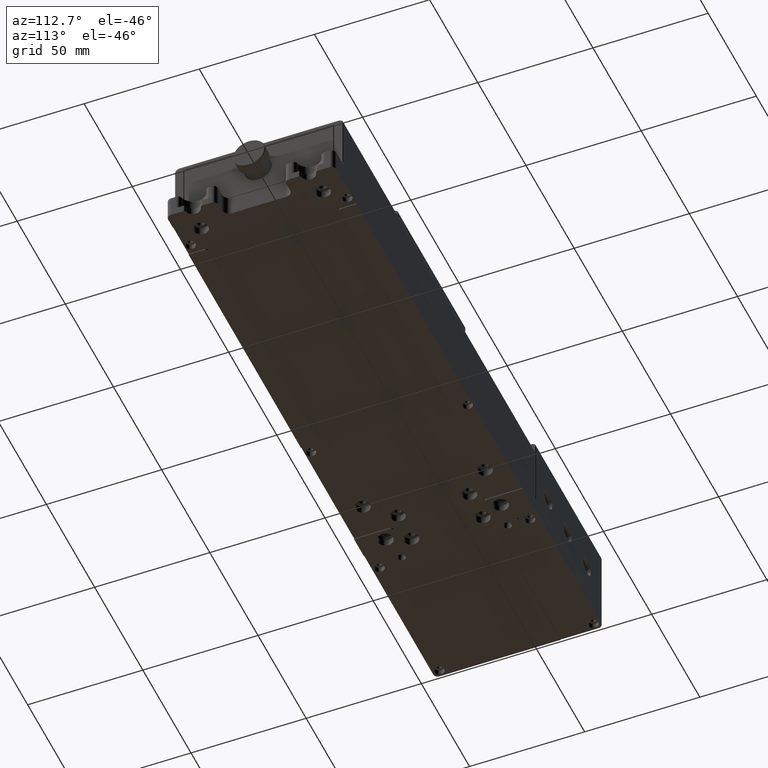
[diagram: clean part render]
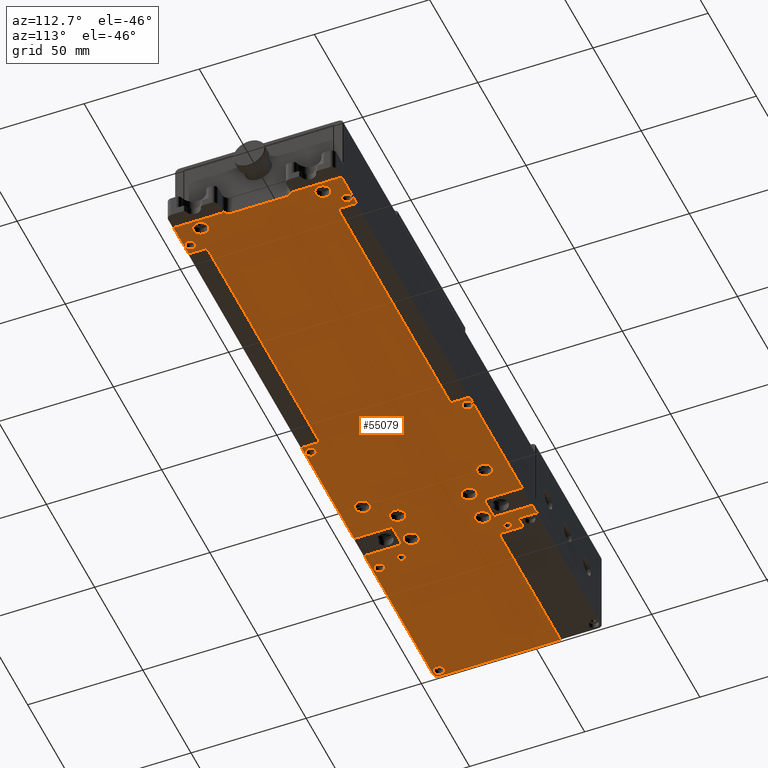
[diagram: same view with one face highlighted and labeled with its STEP entity id]
A machine part, auxiliary view. The second image highlights one B-rep face of the part: STEP entity #55079.
In plain terms, the highlighted planar face has unit normal (0, 0, 1).
Its self-contained STEP definition (entity closure, byte-faithful):
#265 = EDGE_CURVE ( 'NONE', #46659, #51256, #54814, .T. ) ;
#369 = CARTESIAN_POINT ( 'NONE',  ( -151.4252599814024904, -43.46919745025279980, -5.000000000000000000 ) ) ;
#404 = VECTOR ( 'NONE', #51918, 1000.000000000000000 ) ;
#406 = CARTESIAN_POINT ( 'NONE',  ( 118.5747400185975948, -45.46919745025279980, -5.000000000000000000 ) ) ;
#676 = LINE ( 'NONE', #38564, #8265 ) ;
#875 = VERTEX_POINT ( 'NONE', #19033 ) ;
#1094 = EDGE_CURVE ( 'NONE', #60678, #15822, #66562, .T. ) ;
#1246 = DIRECTION ( 'NONE',  ( 0.000000000000000000, 0.000000000000000000, 1.000000000000000000 ) ) ;
#1281 = VECTOR ( 'NONE', #44479, 1000.000000000000000 ) ;
#1370 = EDGE_CURVE ( 'NONE', #35589, #38850, #6203, .T. ) ;
#1426 = DIRECTION ( 'NONE',  ( 1.000000000000000000, 0.000000000000000000, 0.000000000000000000 ) ) ;
#1540 = CARTESIAN_POINT ( 'NONE',  ( -69.42525998140229149, -28.96919745025279980, -5.000000000000000000 ) ) ;
#1763 = EDGE_CURVE ( 'NONE', #53222, #7089, #70087, .T. ) ;
#1798 = CARTESIAN_POINT ( 'NONE',  ( -90.42525998140230570, 9.030802549747210861, -5.000000000000000000 ) ) ;
#1817 = FACE_BOUND ( 'NONE', #28750, .T. ) ;
#1885 = CARTESIAN_POINT ( 'NONE',  ( 116.5747400185975948, 2.830802549747215124, -5.000000000000000000 ) ) ;
#2162 = DIRECTION ( 'NONE',  ( 0.000000000000000000, 0.000000000000000000, -1.000000000000000000 ) ) ;
#2172 = FACE_BOUND ( 'NONE', #13451, .T. ) ;
#2182 = EDGE_CURVE ( 'NONE', #38414, #45064, #4470, .T. ) ;
#2195 = CIRCLE ( 'NONE', #12517, 2.200000000000000622 ) ;
#2448 = ORIENTED_EDGE ( 'NONE', *, *, #1763, .F. ) ;
#2540 = VERTEX_POINT ( 'NONE', #4159 ) ;
#2541 = FACE_OUTER_BOUND ( 'NONE', #5210, .T. ) ;
#2812 = EDGE_LOOP ( 'NONE', ( #29342, #53688 ) ) ;
#2811 = AXIS2_PLACEMENT_3D ( 'NONE', #8332, #36475, #9409 ) ;
#2889 = FACE_BOUND ( 'NONE', #61455, .T. ) ;
#2954 = LINE ( 'NONE', #20631, #60108 ) ;
#3000 = VERTEX_POINT ( 'NONE', #36544 ) ;
#3017 = VERTEX_POINT ( 'NONE', #37607 ) ;
#3294 = AXIS2_PLACEMENT_3D ( 'NONE', #45688, #25123, #47118 ) ;
#3362 = CARTESIAN_POINT ( 'NONE',  ( -14.22525998140227976, -45.46919745025279980, -5.000000000000000000 ) ) ;
#3712 = ORIENTED_EDGE ( 'NONE', *, *, #65206, .F. ) ;
#3775 = DIRECTION ( 'NONE',  ( 0.000000000000000000, 1.000000000000000000, 0.000000000000000000 ) ) ;
#4011 = CARTESIAN_POINT ( 'NONE',  ( -75.17525998140230570, 6.530802549747209973, -5.000000000000000000 ) ) ;
#4017 = DIRECTION ( 'NONE',  ( -1.000000000000000000, 0.000000000000000000, 0.000000000000000000 ) ) ;
#4153 = VECTOR ( 'NONE', #34633, 1000.000000000000000 ) ;
#4159 = CARTESIAN_POINT ( 'NONE',  ( -61.17525998140230570, 6.530802549747209973, -5.000000000000000000 ) ) ;
#4378 = AXIS2_PLACEMENT_3D ( 'NONE', #16966, #44755, #66743 ) ;
#4384 = AXIS2_PLACEMENT_3D ( 'NONE', #37220, #37574, #59581 ) ;
#4400 = CARTESIAN_POINT ( 'NONE',  ( 119.5747400185975948, 5.830802549747209795, -5.000000000000000000 ) ) ;
#4470 = CIRCLE ( 'NONE', #58645, 0.5000000000000004441 ) ;
#4725 = DIRECTION ( 'NONE',  ( 0.000000000000000000, 0.000000000000000000, -1.000000000000000000 ) ) ;
#4737 = DIRECTION ( 'NONE',  ( 0.000000000000000000, 0.000000000000000000, -1.000000000000000000 ) ) ;
#4833 = EDGE_CURVE ( 'NONE', #56523, #8655, #18565, .T. ) ;
#4898 = DIRECTION ( 'NONE',  ( 0.000000000000000000, -1.000000000000000000, 0.000000000000000000 ) ) ;
#4923 = EDGE_CURVE ( 'NONE', #50322, #24203, #51027, .T. ) ;
#4986 = AXIS2_PLACEMENT_3D ( 'NONE', #19072, #37712, #57297 ) ;
#5042 = CARTESIAN_POINT ( 'NONE',  ( -69.42525998140229149, 11.03080254974720020, -5.000000000000000000 ) ) ;
#5086 = CIRCLE ( 'NONE', #55753, 3.250000000000002665 ) ;
#5210 = EDGE_LOOP ( 'NONE', ( #67128, #11081, #40764, #49699, #3712, #32152, #63566, #20474, #15715, #7862, #45558, #47642, #59715, #10521, #57978, #13874, #47479, #71411, #26129, #50723, #62698, #10255, #59147, #55247, #32424, #35215, #36886, #66115, #60237, #63333, #52415, #36128, #55121, #27510, #39876, #63202, #64593, #45324, #51045, #26983, #21327 ) ) ;
#5366 = EDGE_CURVE ( 'NONE', #30670, #8548, #2954, .T. ) ;
#5480 = EDGE_CURVE ( 'NONE', #62137, #26628, #41651, .T. ) ;
#5673 = VERTEX_POINT ( 'NONE', #57331 ) ;
#6111 = EDGE_CURVE ( 'NONE', #44254, #65023, #11716, .T. ) ;
#6131 = CARTESIAN_POINT ( 'NONE',  ( -89.42525998140230570, 9.030802549747210861, -5.000000000000000000 ) ) ;
#6203 = CIRCLE ( 'NONE', #23480, 2.199999999999993516 ) ;
#6243 = VERTEX_POINT ( 'NONE', #41741 ) ;
#6265 = VERTEX_POINT ( 'NONE', #36682 ) ;
#6361 = ORIENTED_EDGE ( 'NONE', *, *, #5480, .F. ) ;
#6499 = DIRECTION ( 'NONE',  ( -1.000000000000000000, 0.000000000000000000, 0.000000000000000000 ) ) ;
#6583 = CARTESIAN_POINT ( 'NONE',  ( 118.5747400185975948, 5.830802549747209795, -5.000000000000000000 ) ) ;
#6599 = EDGE_CURVE ( 'NONE', #6243, #3017, #23909, .T. ) ;
#6677 = CIRCLE ( 'NONE', #4384, 3.250000000000002665 ) ;
#6831 = LINE ( 'NONE', #50856, #26770 ) ;
#6854 = CARTESIAN_POINT ( 'NONE',  ( -64.42525998140230570, -24.46919745025279980, -5.000000000000000000 ) ) ;
#6875 = VERTEX_POINT ( 'NONE', #406 ) ;
#6995 = CARTESIAN_POINT ( 'NONE',  ( -64.42525998140230570, -24.46919745025279980, -5.000000000000000000 ) ) ;
#7044 = DIRECTION ( 'NONE',  ( 0.000000000000000000, -1.000000000000000000, 0.000000000000000000 ) ) ;
#7089 = VERTEX_POINT ( 'NONE', #31728 ) ;
#7172 = AXIS2_PLACEMENT_3D ( 'NONE', #38411, #10982, #66177 ) ;
#7405 = LINE ( 'NONE', #56837, #47475 ) ;
#7590 = DIRECTION ( 'NONE',  ( -1.000000000000000000, 0.000000000000000000, 0.000000000000000000 ) ) ;
#7743 = AXIS2_PLACEMENT_3D ( 'NONE', #12072, #23988, #67978 ) ;
#7762 = DIRECTION ( 'NONE',  ( -1.000000000000000000, 0.000000000000000000, 0.000000000000000000 ) ) ;
#7862 = ORIENTED_EDGE ( 'NONE', *, *, #15532, .T. ) ;
#7935 = CARTESIAN_POINT ( 'NONE',  ( -13.22525998140227799, -37.46919745025279980, -5.000000000000000000 ) ) ;
#8265 = VECTOR ( 'NONE', #43999, 1000.000000000000000 ) ;
#8332 = CARTESIAN_POINT ( 'NONE',  ( 113.5747400185975948, -35.46919745025279980, -5.000000000000000000 ) ) ;
#8347 = LINE ( 'NONE', #52354, #60051 ) ;
#8429 = EDGE_CURVE ( 'NONE', #6875, #32770, #20738, .T. ) ;
#8548 = VERTEX_POINT ( 'NONE', #6583 ) ;
#8573 = VERTEX_POINT ( 'NONE', #56369 ) ;
#8655 = VERTEX_POINT ( 'NONE', #61775 ) ;
#8659 = CIRCLE ( 'NONE', #26000, 1.000000000000000888 ) ;
#8744 = AXIS2_PLACEMENT_3D ( 'NONE', #67653, #29783, #13514 ) ;
#8753 = ORIENTED_EDGE ( 'NONE', *, *, #38376, .F. ) ;
#8845 = VECTOR ( 'NONE', #37164, 1000.000000000000000 ) ;
#8928 = VERTEX_POINT ( 'NONE', #21010 ) ;
#8932 = ORIENTED_EDGE ( 'NONE', *, *, #38775, .T. ) ;
#9368 = EDGE_CURVE ( 'NONE', #8573, #31066, #676, .T. ) ;
#9379 = LINE ( 'NONE', #25996, #8845 ) ;
#9384 = EDGE_CURVE ( 'NONE', #60069, #66681, #33174, .T. ) ;
#9409 = DIRECTION ( 'NONE',  ( -1.000000000000000000, 0.000000000000000000, 0.000000000000000000 ) ) ;
#9426 = CARTESIAN_POINT ( 'NONE',  ( -150.4252599814024904, -42.46919745025279980, -5.000000000000000000 ) ) ;
#9651 = DIRECTION ( 'NONE',  ( -1.000000000000000000, 0.000000000000000000, 0.000000000000000000 ) ) ;
#9724 = CARTESIAN_POINT ( 'NONE',  ( -79.42525998140230570, -45.46919745025279980, -5.000000000000000000 ) ) ;
#9837 = VERTEX_POINT ( 'NONE', #16471 ) ;
#9852 = EDGE_CURVE ( 'NONE', #22302, #9837, #17321, .T. ) ;
#9924 = EDGE_CURVE ( 'NONE', #24908, #19865, #51053, .T. ) ;
#9951 = CIRCLE ( 'NONE', #8744, 3.250000000000002665 ) ;
#10039 = DIRECTION ( 'NONE',  ( 0.000000000000000000, 1.000000000000000000, 0.000000000000000000 ) ) ;
#10132 = DIRECTION ( 'NONE',  ( -1.000000000000000000, -7.438779914137249619E-18, 0.000000000000000000 ) ) ;
#10220 = CARTESIAN_POINT ( 'NONE',  ( -16.22525998140229930, 25.03080254974720020, -5.000000000000000000 ) ) ;
#10255 = ORIENTED_EDGE ( 'NONE', *, *, #9368, .F. ) ;
#10301 = DIRECTION ( 'NONE',  ( 0.000000000000000000, 0.000000000000000000, -1.000000000000000000 ) ) ;
#10371 = DIRECTION ( 'NONE',  ( 0.000000000000000000, 0.000000000000000000, 1.000000000000000000 ) ) ;
#10429 = VECTOR ( 'NONE', #7044, 1000.000000000000000 ) ;
#10485 = VECTOR ( 'NONE', #23555, 1000.000000000000000 ) ;
#10503 = CARTESIAN_POINT ( 'NONE',  ( 102.3747400185976062, 19.53080254974720020, -5.000000000000000000 ) ) ;
#10521 = ORIENTED_EDGE ( 'NONE', *, *, #4833, .F. ) ;
#10685 = VERTEX_POINT ( 'NONE', #12543 ) ;
#10842 = CARTESIAN_POINT ( 'NONE',  ( -78.42525998140230570, -24.46919745025279980, -5.000000000000000000 ) ) ;
#10885 = VECTOR ( 'NONE', #66805, 1000.000000000000000 ) ;
#10982 = DIRECTION ( 'NONE',  ( 0.000000000000000000, 0.000000000000000000, 1.000000000000000000 ) ) ;
#11081 = ORIENTED_EDGE ( 'NONE', *, *, #63167, .T. ) ;
#11160 = EDGE_CURVE ( 'NONE', #31066, #45603, #7405, .T. ) ;
#11205 = DIRECTION ( 'NONE',  ( -1.000000000000000000, 0.000000000000000000, 0.000000000000000000 ) ) ;
#11391 = EDGE_CURVE ( 'NONE', #60069, #875, #38302, .T. ) ;
#11405 = DIRECTION ( 'NONE',  ( 0.000000000000000000, 0.000000000000000000, -1.000000000000000000 ) ) ;
#11716 = CIRCLE ( 'NONE', #62383, 2.199999999999993516 ) ;
#11724 = VECTOR ( 'NONE', #27055, 1000.000000000000000 ) ;
#11897 = LINE ( 'NONE', #62020, #404 ) ;
#11991 = EDGE_CURVE ( 'NONE', #10685, #34958, #37877, .T. ) ;
#12072 = CARTESIAN_POINT ( 'NONE',  ( -64.42525998140230570, 6.530802549747209973, -5.000000000000000000 ) ) ;
#12353 = CIRCLE ( 'NONE', #46943, 1.000000000000000888 ) ;
#12517 = AXIS2_PLACEMENT_3D ( 'NONE', #27698, #65195, #49687 ) ;
#12538 = EDGE_CURVE ( 'NONE', #14366, #15061, #31034, .T. ) ;
#12543 = CARTESIAN_POINT ( 'NONE',  ( -14.22525998140234016, 20.53080254974720020, -5.000000000000000000 ) ) ;
#12592 = CARTESIAN_POINT ( 'NONE',  ( -14.22525998140234016, 27.53080254974720020, -5.000000000000000000 ) ) ;
#12620 = FACE_BOUND ( 'NONE', #50747, .T. ) ;
#12801 = AXIS2_PLACEMENT_3D ( 'NONE', #24789, #39585, #46431 ) ;
#12910 = DIRECTION ( 'NONE',  ( 0.000000000000000000, 0.000000000000000000, 1.000000000000000000 ) ) ;
#13070 = ORIENTED_EDGE ( 'NONE', *, *, #24023, .F. ) ;
#13106 = DIRECTION ( 'NONE',  ( 0.000000000000000000, 0.000000000000000000, -1.000000000000000000 ) ) ;
#13340 = VERTEX_POINT ( 'NONE', #48281 ) ;
#13451 = EDGE_LOOP ( 'NONE', ( #69031, #2448 ) ) ;
#13514 = DIRECTION ( 'NONE',  ( -1.000000000000000000, 0.000000000000000000, 0.000000000000000000 ) ) ;
#13593 = CARTESIAN_POINT ( 'NONE',  ( -79.42525998140230570, -29.96919745025279980, -5.000000000000000000 ) ) ;
#13697 = EDGE_CURVE ( 'NONE', #65023, #44254, #26584, .T. ) ;
#13700 = CARTESIAN_POINT ( 'NONE',  ( 108.7747400185975835, -42.96919745025279980, -5.000000000000000000 ) ) ;
#13701 = EDGE_CURVE ( 'NONE', #38414, #45603, #37017, .T. ) ;
#13721 = EDGE_CURVE ( 'NONE', #21530, #52808, #64784, .T. ) ;
#13874 = ORIENTED_EDGE ( 'NONE', *, *, #46318, .T. ) ;
#13885 = ORIENTED_EDGE ( 'NONE', *, *, #16665, .F. ) ;
#14078 = CARTESIAN_POINT ( 'NONE',  ( 119.5747400185975948, -23.76919745025280051, -5.000000000000000000 ) ) ;
#14084 = ORIENTED_EDGE ( 'NONE', *, *, #38381, .F. ) ;
#14179 = AXIS2_PLACEMENT_3D ( 'NONE', #37356, #46142, #40717 ) ;
#14187 = ORIENTED_EDGE ( 'NONE', *, *, #6111, .F. ) ;
#14222 = AXIS2_PLACEMENT_3D ( 'NONE', #37626, #38689, #44815 ) ;
#14366 = VERTEX_POINT ( 'NONE', #28236 ) ;
#14570 = CIRCLE ( 'NONE', #15725, 3.000000000000002665 ) ;
#14877 = LINE ( 'NONE', #3362, #47172 ) ;
#14910 = VERTEX_POINT ( 'NONE', #56617 ) ;
#14985 = DIRECTION ( 'NONE',  ( -1.000000000000000000, 0.000000000000000000, 0.000000000000000000 ) ) ;
#15059 = CARTESIAN_POINT ( 'NONE',  ( 116.5747400185975948, 26.03080254974719665, -5.000000000000000000 ) ) ;
#15061 = VERTEX_POINT ( 'NONE', #43167 ) ;
#15062 = AXIS2_PLACEMENT_3D ( 'NONE', #60824, #11405, #33440 ) ;
#15161 = CARTESIAN_POINT ( 'NONE',  ( 116.5747400185975948, -20.76919745025280051, -5.000000000000000000 ) ) ;
#15203 = EDGE_CURVE ( 'NONE', #2540, #5673, #57285, .T. ) ;
#15207 = VERTEX_POINT ( 'NONE', #62564 ) ;
#15304 = CARTESIAN_POINT ( 'NONE',  ( 106.5747400185975948, -42.96919745025279980, -5.000000000000000000 ) ) ;
#15491 = LINE ( 'NONE', #5042, #61838 ) ;
#15532 = EDGE_CURVE ( 'NONE', #6243, #55449, #32028, .T. ) ;
#15572 = CIRCLE ( 'NONE', #59367, 2.000000000000001776 ) ;
#15580 = CARTESIAN_POINT ( 'NONE',  ( 113.5747400185975948, 17.53080254974720020, -5.000000000000000000 ) ) ;
#15674 = LINE ( 'NONE', #27605, #71108 ) ;
#15715 = ORIENTED_EDGE ( 'NONE', *, *, #6599, .F. ) ;
#15725 = AXIS2_PLACEMENT_3D ( 'NONE', #49266, #33047, #64783 ) ;
#15773 = CARTESIAN_POINT ( 'NONE',  ( -13.22525998140233838, 20.53080254974720020, -5.000000000000000000 ) ) ;
#15822 = VERTEX_POINT ( 'NONE', #16025 ) ;
#15839 = ORIENTED_EDGE ( 'NONE', *, *, #12538, .T. ) ;
#15878 = AXIS2_PLACEMENT_3D ( 'NONE', #23664, #60827, #17878 ) ;
#15897 = VECTOR ( 'NONE', #17674, 1000.000000000000000 ) ;
#15949 = CIRCLE ( 'NONE', #3294, 1.000000000000000888 ) ;
#15959 = VERTEX_POINT ( 'NONE', #34762 ) ;
#16025 = CARTESIAN_POINT ( 'NONE',  ( -51.17525998140229859, -35.46919745025279980, -5.000000000000000000 ) ) ;
#16028 = CARTESIAN_POINT ( 'NONE',  ( 118.5747400185975948, -23.76919745025280051, -5.000000000000000000 ) ) ;
#16077 = CARTESIAN_POINT ( 'NONE',  ( -150.4252599814024904, -42.46919745025279980, -5.000000000000000000 ) ) ;
#16250 = CARTESIAN_POINT ( 'NONE',  ( -75.17525998140230570, -24.46919745025279980, -5.000000000000000000 ) ) ;
#16471 = CARTESIAN_POINT ( 'NONE',  ( -20.62525998140235117, -42.96919745025279980, -5.000000000000000000 ) ) ;
#16665 = EDGE_CURVE ( 'NONE', #9837, #22302, #2195, .T. ) ;
#16716 = ORIENTED_EDGE ( 'NONE', *, *, #36480, .F. ) ;
#16871 = CARTESIAN_POINT ( 'NONE',  ( -14.22525998140234016, 27.53080254974720020, -5.000000000000000000 ) ) ;
#16966 = CARTESIAN_POINT ( 'NONE',  ( -54.42525998140230570, 17.53080254974720020, -5.000000000000000000 ) ) ;
#16972 = CARTESIAN_POINT ( 'NONE',  ( -78.42525998140230570, 11.03080254974720020, -5.000000000000000000 ) ) ;
#17061 = CARTESIAN_POINT ( 'NONE',  ( 101.3747400185976062, 20.53080254974720020, -5.000000000000000000 ) ) ;
#17226 = DIRECTION ( 'NONE',  ( -1.000000000000000000, 0.000000000000000000, 0.000000000000000000 ) ) ;
#17321 = CIRCLE ( 'NONE', #15062, 2.200000000000000622 ) ;
#17562 = ORIENTED_EDGE ( 'NONE', *, *, #57006, .F. ) ;
#17674 = DIRECTION ( 'NONE',  ( 1.000000000000000000, 0.000000000000000000, -1.749495427353365070E-17 ) ) ;
#17873 = VERTEX_POINT ( 'NONE', #15161 ) ;
#17878 = DIRECTION ( 'NONE',  ( -1.000000000000000000, 0.000000000000000000, 0.000000000000000000 ) ) ;
#17922 = AXIS2_PLACEMENT_3D ( 'NONE', #6854, #24193, #6499 ) ;
#17978 = EDGE_CURVE ( 'NONE', #27683, #8655, #15572, .T. ) ;
#18002 = VERTEX_POINT ( 'NONE', #49782 ) ;
#18261 = CARTESIAN_POINT ( 'NONE',  ( -20.62525998140235117, 25.03080254974720020, -5.000000000000000000 ) ) ;
#18405 = FACE_BOUND ( 'NONE', #32013, .T. ) ;
#18473 = DIRECTION ( 'NONE',  ( 1.000000000000000000, 0.000000000000000000, 0.000000000000000000 ) ) ;
#18478 = EDGE_CURVE ( 'NONE', #51256, #46659, #5086, .T. ) ;
#18565 = LINE ( 'NONE', #46701, #34651 ) ;
#18831 = EDGE_CURVE ( 'NONE', #32770, #64571, #23178, .T. ) ;
#19033 = CARTESIAN_POINT ( 'NONE',  ( -14.22525998140227976, -38.46919745025280690, -5.000000000000000000 ) ) ;
#19072 = CARTESIAN_POINT ( 'NONE',  ( 106.5747400185975948, 25.03080254974720020, -5.000000000000000000 ) ) ;
#19319 = AXIS2_PLACEMENT_3D ( 'NONE', #23852, #57016, #7590 ) ;
#19391 = AXIS2_PLACEMENT_3D ( 'NONE', #15580, #41952, #26080 ) ;
#19427 = CARTESIAN_POINT ( 'NONE',  ( -84.42525998140229149, 20.03080254974720020, -5.000000000000000000 ) ) ;
#19561 = EDGE_CURVE ( 'NONE', #15959, #19865, #8659, .T. ) ;
#19865 = VERTEX_POINT ( 'NONE', #46321 ) ;
#20435 = CARTESIAN_POINT ( 'NONE',  ( -86.22525998140230286, -42.46919745025279980, -5.000000000000000000 ) ) ;
#20474 = ORIENTED_EDGE ( 'NONE', *, *, #49289, .T. ) ;
#20631 = CARTESIAN_POINT ( 'NONE',  ( 118.5747400185975948, 5.830802549747209795, -5.000000000000000000 ) ) ;
#20710 = EDGE_CURVE ( 'NONE', #17873, #64571, #14570, .T. ) ;
#20738 = LINE ( 'NONE', #65083, #46904 ) ;
#20754 = CARTESIAN_POINT ( 'NONE',  ( -57.67525998140229859, -35.46919745025279980, -5.000000000000000000 ) ) ;
#20845 = CARTESIAN_POINT ( 'NONE',  ( -152.6252599814025075, -42.46919745025279980, -5.000000000000000000 ) ) ;
#20985 = DIRECTION ( 'NONE',  ( 0.000000000000000000, 0.000000000000000000, 1.000000000000000000 ) ) ;
#21008 = ORIENTED_EDGE ( 'NONE', *, *, #48963, .F. ) ;
#21010 = CARTESIAN_POINT ( 'NONE',  ( 101.3747400185976062, 19.53080254974720020, -5.000000000000000000 ) ) ;
#21327 = ORIENTED_EDGE ( 'NONE', *, *, #52716, .F. ) ;
#21347 = CARTESIAN_POINT ( 'NONE',  ( -151.4252599814024904, -45.46919745025279980, -5.000000000000000000 ) ) ;
#21417 = CARTESIAN_POINT ( 'NONE',  ( 104.3747400185975920, -42.96919745025279980, -5.000000000000000000 ) ) ;
#21530 = VERTEX_POINT ( 'NONE', #32144 ) ;
#21549 = EDGE_CURVE ( 'NONE', #8573, #26420, #12353, .T. ) ;
#21648 = CARTESIAN_POINT ( 'NONE',  ( -153.4252599814024904, 9.030802549747210861, -5.000000000000000000 ) ) ;
#21927 = AXIS2_PLACEMENT_3D ( 'NONE', #46954, #20985, #47667 ) ;
#22117 = ORIENTED_EDGE ( 'NONE', *, *, #33331, .F. ) ;
#22181 = EDGE_CURVE ( 'NONE', #15822, #60678, #27787, .T. ) ;
#22212 = CARTESIAN_POINT ( 'NONE',  ( -86.42525998140229149, 14.03080254974720020, -5.000000000000000000 ) ) ;
#22226 = CARTESIAN_POINT ( 'NONE',  ( -84.42525998140229149, 19.53080254974720020, -5.000000000000000000 ) ) ;
#22302 = VERTEX_POINT ( 'NONE', #57956 ) ;
#22374 = DIRECTION ( 'NONE',  ( 0.000000000000000000, 0.000000000000000000, -1.000000000000000000 ) ) ;
#22525 = ORIENTED_EDGE ( 'NONE', *, *, #69394, .F. ) ;
#22583 = VERTEX_POINT ( 'NONE', #1885 ) ;
#22847 = EDGE_CURVE ( 'NONE', #41054, #3000, #6831, .T. ) ;
#22980 = DIRECTION ( 'NONE',  ( 0.000000000000000000, 0.000000000000000000, -1.000000000000000000 ) ) ;
#23178 = LINE ( 'NONE', #45175, #10885 ) ;
#23480 = AXIS2_PLACEMENT_3D ( 'NONE', #15304, #70534, #64025 ) ;
#23547 = CARTESIAN_POINT ( 'NONE',  ( -78.42525998140230570, -29.96919745025279980, -5.000000000000000000 ) ) ;
#23555 = DIRECTION ( 'NONE',  ( 1.000000000000000000, 0.000000000000000000, 0.000000000000000000 ) ) ;
#23664 = CARTESIAN_POINT ( 'NONE',  ( -54.42525998140230570, -35.46919745025279980, -5.000000000000000000 ) ) ;
#23723 = DIRECTION ( 'NONE',  ( 0.000000000000000000, 0.000000000000000000, -1.000000000000000000 ) ) ;
#23830 = FACE_BOUND ( 'NONE', #67314, .T. ) ;
#23852 = CARTESIAN_POINT ( 'NONE',  ( -78.42525998140230570, 6.530802549747209973, -5.000000000000000000 ) ) ;
#23909 = LINE ( 'NONE', #1540, #10485 ) ;
#23988 = DIRECTION ( 'NONE',  ( 0.000000000000000000, 0.000000000000000000, -1.000000000000000000 ) ) ;
#24023 = EDGE_CURVE ( 'NONE', #14910, #68198, #41722, .T. ) ;
#24044 = EDGE_CURVE ( 'NONE', #15061, #14366, #45167, .T. ) ;
#24123 = CARTESIAN_POINT ( 'NONE',  ( 101.3747400185976062, -38.46919745025280690, -5.000000000000000000 ) ) ;
#24138 = CARTESIAN_POINT ( 'NONE',  ( 102.3747400185976062, -38.46919745025280690, -5.000000000000000000 ) ) ;
#24193 = DIRECTION ( 'NONE',  ( 0.000000000000000000, 0.000000000000000000, -1.000000000000000000 ) ) ;
#24203 = VERTEX_POINT ( 'NONE', #33580 ) ;
#24550 = FACE_BOUND ( 'NONE', #49273, .T. ) ;
#24789 = CARTESIAN_POINT ( 'NONE',  ( -54.42525998140230570, -35.46919745025279980, -5.000000000000000000 ) ) ;
#24882 = EDGE_CURVE ( 'NONE', #36661, #29713, #61317, .T. ) ;
#24908 = VERTEX_POINT ( 'NONE', #44838 ) ;
#24955 = EDGE_CURVE ( 'NONE', #66603, #32401, #41819, .T. ) ;
#25052 = AXIS2_PLACEMENT_3D ( 'NONE', #24123, #12910, #34940 ) ;
#25123 = DIRECTION ( 'NONE',  ( 0.000000000000000000, 0.000000000000000000, 1.000000000000000000 ) ) ;
#25164 = EDGE_CURVE ( 'NONE', #8928, #34958, #42996, .T. ) ;
#25444 = VECTOR ( 'NONE', #43873, 1000.000000000000000 ) ;
#25701 = CARTESIAN_POINT ( 'NONE',  ( 106.5747400185975948, -42.96919745025279980, -5.000000000000000000 ) ) ;
#25855 = CIRCLE ( 'NONE', #64970, 2.199999999999993516 ) ;
#25996 = CARTESIAN_POINT ( 'NONE',  ( 116.5747400185975948, 27.53080254974720020, -5.000000000000000000 ) ) ;
#26000 = AXIS2_PLACEMENT_3D ( 'NONE', #47110, #63697, #58286 ) ;
#26080 = DIRECTION ( 'NONE',  ( -1.000000000000000000, 0.000000000000000000, 0.000000000000000000 ) ) ;
#26129 = ORIENTED_EDGE ( 'NONE', *, *, #2182, .F. ) ;
#26238 = VECTOR ( 'NONE', #60161, 1000.000000000000000 ) ;
#26241 = CARTESIAN_POINT ( 'NONE',  ( 116.8247400185975948, -35.46919745025279980, -5.000000000000000000 ) ) ;
#26420 = VERTEX_POINT ( 'NONE', #16972 ) ;
#26584 = CIRCLE ( 'NONE', #27753, 2.199999999999993516 ) ;
#26628 = VERTEX_POINT ( 'NONE', #29943 ) ;
#26770 = VECTOR ( 'NONE', #45458, 1000.000000000000000 ) ;
#26983 = ORIENTED_EDGE ( 'NONE', *, *, #8429, .F. ) ;
#27055 = DIRECTION ( 'NONE',  ( 1.000000000000000000, 0.000000000000000000, 0.000000000000000000 ) ) ;
#27304 = CIRCLE ( 'NONE', #45697, 3.250000000000002665 ) ;
#27496 = CIRCLE ( 'NONE', #64283, 3.000000000000002665 ) ;
#27510 = ORIENTED_EDGE ( 'NONE', *, *, #52875, .F. ) ;
#27605 = CARTESIAN_POINT ( 'NONE',  ( -58.42525998140229859, -45.46919745025279980, -5.000000000000000000 ) ) ;
#27683 = VERTEX_POINT ( 'NONE', #21347 ) ;
#27698 = CARTESIAN_POINT ( 'NONE',  ( -18.42525998140229859, -42.96919745025279980, -5.000000000000000000 ) ) ;
#27752 = EDGE_CURVE ( 'NONE', #27876, #56523, #27828, .T. ) ;
#27753 = AXIS2_PLACEMENT_3D ( 'NONE', #65488, #10301, #14985 ) ;
#27787 = CIRCLE ( 'NONE', #12801, 3.250000000000002665 ) ;
#27828 = LINE ( 'NONE', #6131, #39521 ) ;
#27876 = VERTEX_POINT ( 'NONE', #1798 ) ;
#27919 = EDGE_CURVE ( 'NONE', #45064, #55374, #11897, .T. ) ;
#27929 = DIRECTION ( 'NONE',  ( 1.000000000000000000, 0.000000000000000000, 0.000000000000000000 ) ) ;
#28221 = DIRECTION ( 'NONE',  ( 0.000000000000000000, 1.000000000000000000, 0.000000000000000000 ) ) ;
#28236 = CARTESIAN_POINT ( 'NONE',  ( -84.77525998140230001, 14.03080254974720020, -5.000000000000000000 ) ) ;
#28428 = CARTESIAN_POINT ( 'NONE',  ( -88.42525998140230570, -42.46919745025279980, -5.000000000000000000 ) ) ;
#28750 = EDGE_LOOP ( 'NONE', ( #17562, #68890 ) ) ;
#28968 = CARTESIAN_POINT ( 'NONE',  ( -86.42525998140229149, -31.96919745025280335, -5.000000000000000000 ) ) ;
#29241 = FACE_BOUND ( 'NONE', #36085, .T. ) ;
#29342 = ORIENTED_EDGE ( 'NONE', *, *, #1094, .F. ) ;
#29592 = FACE_BOUND ( 'NONE', #41147, .T. ) ;
#29665 = DIRECTION ( 'NONE',  ( -1.000000000000000000, 0.000000000000000000, 0.000000000000000000 ) ) ;
#29713 = VERTEX_POINT ( 'NONE', #26241 ) ;
#29783 = DIRECTION ( 'NONE',  ( 0.000000000000000000, 0.000000000000000000, -1.000000000000000000 ) ) ;
#29943 = CARTESIAN_POINT ( 'NONE',  ( -148.2252599814023881, -42.46919745025279980, -5.000000000000000000 ) ) ;
#30051 = DIRECTION ( 'NONE',  ( 0.000000000000000000, 0.000000000000000000, -1.000000000000000000 ) ) ;
#30094 = AXIS2_PLACEMENT_3D ( 'NONE', #63322, #57922, #69473 ) ;
#30474 = CIRCLE ( 'NONE', #2811, 3.250000000000002665 ) ;
#30670 = VERTEX_POINT ( 'NONE', #4400 ) ;
#31034 = CIRCLE ( 'NONE', #71381, 1.649999999999998579 ) ;
#31066 = VERTEX_POINT ( 'NONE', #69167 ) ;
#31453 = DIRECTION ( 'NONE',  ( 0.000000000000000000, 0.000000000000000000, -1.000000000000000000 ) ) ;
#31508 = DIRECTION ( 'NONE',  ( 0.000000000000000000, 1.000000000000000000, 0.000000000000000000 ) ) ;
#31728 = CARTESIAN_POINT ( 'NONE',  ( 110.3247400185975948, 17.53080254974720020, -5.000000000000000000 ) ) ;
#32013 = EDGE_LOOP ( 'NONE', ( #41762, #51708 ) ) ;
#32024 = LINE ( 'NONE', #15059, #26238 ) ;
#32028 = CIRCLE ( 'NONE', #59677, 1.000000000000000888 ) ;
#32144 = CARTESIAN_POINT ( 'NONE',  ( 102.3747400185976062, 27.53080254974720020, -5.000000000000000000 ) ) ;
#32152 = ORIENTED_EDGE ( 'NONE', *, *, #48954, .F. ) ;
#32401 = VERTEX_POINT ( 'NONE', #39886 ) ;
#32424 = ORIENTED_EDGE ( 'NONE', *, *, #19561, .T. ) ;
#32684 = EDGE_CURVE ( 'NONE', #27683, #56309, #15674, .T. ) ;
#32770 = VERTEX_POINT ( 'NONE', #16028 ) ;
#33047 = DIRECTION ( 'NONE',  ( 0.000000000000000000, 0.000000000000000000, 1.000000000000000000 ) ) ;
#33174 = LINE ( 'NONE', #38214, #11724 ) ;
#33331 = EDGE_CURVE ( 'NONE', #66772, #51724, #38891, .T. ) ;
#33440 = DIRECTION ( 'NONE',  ( -1.000000000000000000, 0.000000000000000000, 0.000000000000000000 ) ) ;
#33528 = VECTOR ( 'NONE', #45630, 1000.000000000000000 ) ;
#33580 = CARTESIAN_POINT ( 'NONE',  ( 102.3747400185976062, -45.46919745025279980, -5.000000000000000000 ) ) ;
#33960 = EDGE_LOOP ( 'NONE', ( #14084, #41485 ) ) ;
#34190 = EDGE_LOOP ( 'NONE', ( #58855, #14187 ) ) ;
#34611 = CARTESIAN_POINT ( 'NONE',  ( 119.5747400185975948, 2.830802549747215124, -5.000000000000000000 ) ) ;
#34633 = DIRECTION ( 'NONE',  ( 0.000000000000000000, 1.000000000000000000, 0.000000000000000000 ) ) ;
#34651 = VECTOR ( 'NONE', #68688, 1000.000000000000000 ) ;
#34762 = CARTESIAN_POINT ( 'NONE',  ( -70.42525998140229149, 11.03080254974720020, -5.000000000000000000 ) ) ;
#34867 = CARTESIAN_POINT ( 'NONE',  ( -18.42525998140229859, 25.03080254974720020, -5.000000000000000000 ) ) ;
#34940 = DIRECTION ( 'NONE',  ( 1.000000000000000000, 0.000000000000000000, 0.000000000000000000 ) ) ;
#34956 = CARTESIAN_POINT ( 'NONE',  ( 116.5747400185975948, 27.53080254974720020, -5.000000000000000000 ) ) ;
#34958 = VERTEX_POINT ( 'NONE', #58713 ) ;
#35215 = ORIENTED_EDGE ( 'NONE', *, *, #9924, .F. ) ;
#35459 = CARTESIAN_POINT ( 'NONE',  ( 106.5747400185975948, 25.03080254974720020, -5.000000000000000000 ) ) ;
#35589 = VERTEX_POINT ( 'NONE', #13700 ) ;
#35841 = CARTESIAN_POINT ( 'NONE',  ( -90.62525998140230854, -42.46919745025279980, -5.000000000000000000 ) ) ;
#36085 = EDGE_LOOP ( 'NONE', ( #36445, #8932 ) ) ;
#36128 = ORIENTED_EDGE ( 'NONE', *, *, #13721, .F. ) ;
#36321 = AXIS2_PLACEMENT_3D ( 'NONE', #35459, #30051, #52036 ) ;
#36445 = ORIENTED_EDGE ( 'NONE', *, *, #24955, .T. ) ;
#36475 = DIRECTION ( 'NONE',  ( 0.000000000000000000, 0.000000000000000000, -1.000000000000000000 ) ) ;
#36480 = EDGE_CURVE ( 'NONE', #51724, #66772, #51951, .T. ) ;
#36544 = CARTESIAN_POINT ( 'NONE',  ( -69.42525998140229149, -45.46919745025279980, -5.000000000000000000 ) ) ;
#36661 = VERTEX_POINT ( 'NONE', #48896 ) ;
#36682 = CARTESIAN_POINT ( 'NONE',  ( 104.3747400185975920, 25.03080254974720020, -5.000000000000000000 ) ) ;
#36886 = ORIENTED_EDGE ( 'NONE', *, *, #62978, .F. ) ;
#37017 = LINE ( 'NONE', #22226, #25444 ) ;
#37124 = AXIS2_PLACEMENT_3D ( 'NONE', #70776, #2162, #46543 ) ;
#37164 = DIRECTION ( 'NONE',  ( -1.000000000000000000, 0.000000000000000000, 0.000000000000000000 ) ) ;
#37187 = EDGE_CURVE ( 'NONE', #47121, #21530, #46849, .T. ) ;
#37220 = CARTESIAN_POINT ( 'NONE',  ( -54.42525998140230570, 17.53080254974720020, -5.000000000000000000 ) ) ;
#37356 = CARTESIAN_POINT ( 'NONE',  ( -18.42525998140229859, 25.03080254974720020, -5.000000000000000000 ) ) ;
#37574 = DIRECTION ( 'NONE',  ( 0.000000000000000000, 0.000000000000000000, -1.000000000000000000 ) ) ;
#37588 = VERTEX_POINT ( 'NONE', #18261 ) ;
#37607 = CARTESIAN_POINT ( 'NONE',  ( -70.42525998140229149, -28.96919745025279980, -5.000000000000000000 ) ) ;
#37626 = CARTESIAN_POINT ( 'NONE',  ( -86.42525998140229149, -31.96919745025280335, -5.000000000000000000 ) ) ;
#37712 = DIRECTION ( 'NONE',  ( 0.000000000000000000, 0.000000000000000000, -1.000000000000000000 ) ) ;
#37848 = EDGE_LOOP ( 'NONE', ( #16716, #22117 ) ) ;
#37877 = CIRCLE ( 'NONE', #52852, 0.9999999999999991118 ) ;
#38214 = CARTESIAN_POINT ( 'NONE',  ( 102.3747400185976062, -37.46919745025279980, -5.000000000000000000 ) ) ;
#38286 = LINE ( 'NONE', #44403, #15897 ) ;
#38302 = CIRCLE ( 'NONE', #7172, 1.000000000000000888 ) ;
#38376 = EDGE_CURVE ( 'NONE', #15207, #6265, #39580, .T. ) ;
#38381 = EDGE_CURVE ( 'NONE', #37588, #52566, #45297, .T. ) ;
#38411 = CARTESIAN_POINT ( 'NONE',  ( -13.22525998140227799, -38.46919745025280690, -5.000000000000000000 ) ) ;
#38414 = VERTEX_POINT ( 'NONE', #19427 ) ;
#38564 = CARTESIAN_POINT ( 'NONE',  ( -79.42525998140230570, 27.53080254974720020, -5.000000000000000000 ) ) ;
#38689 = DIRECTION ( 'NONE',  ( 0.000000000000000000, 0.000000000000000000, 1.000000000000000000 ) ) ;
#38775 = EDGE_CURVE ( 'NONE', #32401, #66603, #45349, .T. ) ;
#38850 = VERTEX_POINT ( 'NONE', #21417 ) ;
#38851 = AXIS2_PLACEMENT_3D ( 'NONE', #34867, #22980, #67319 ) ;
#38891 = CIRCLE ( 'NONE', #19319, 3.250000000000002665 ) ;
#39009 = EDGE_CURVE ( 'NONE', #29713, #36661, #30474, .T. ) ;
#39521 = VECTOR ( 'NONE', #11205, 1000.000000000000000 ) ;
#39541 = AXIS2_PLACEMENT_3D ( 'NONE', #54862, #59209, #64966 ) ;
#39580 = CIRCLE ( 'NONE', #4986, 2.199999999999993516 ) ;
#39585 = DIRECTION ( 'NONE',  ( 0.000000000000000000, 0.000000000000000000, -1.000000000000000000 ) ) ;
#39650 = DIRECTION ( 'NONE',  ( 1.000000000000000000, 0.000000000000000000, 0.000000000000000000 ) ) ;
#39704 = EDGE_LOOP ( 'NONE', ( #13885, #67139 ) ) ;
#39876 = ORIENTED_EDGE ( 'NONE', *, *, #5366, .F. ) ;
#39886 = CARTESIAN_POINT ( 'NONE',  ( -88.07525998140229717, -31.96919745025280335, -5.000000000000000000 ) ) ;
#39957 = CARTESIAN_POINT ( 'NONE',  ( -89.42525998140230570, 19.53080254974720020, -5.000000000000000000 ) ) ;
#40558 = EDGE_CURVE ( 'NONE', #10685, #40798, #67436, .T. ) ;
#40717 = DIRECTION ( 'NONE',  ( -1.000000000000000000, 0.000000000000000000, 0.000000000000000000 ) ) ;
#40764 = ORIENTED_EDGE ( 'NONE', *, *, #9384, .F. ) ;
#40798 = VERTEX_POINT ( 'NONE', #16871 ) ;
#40921 = CARTESIAN_POINT ( 'NONE',  ( 102.3747400185976062, -45.46919745025279980, -5.000000000000000000 ) ) ;
#41054 = VERTEX_POINT ( 'NONE', #46437 ) ;
#41119 = DIRECTION ( 'NONE',  ( 1.000000000000000000, 0.000000000000000000, 0.000000000000000000 ) ) ;
#41147 = EDGE_LOOP ( 'NONE', ( #22525, #21008 ) ) ;
#41485 = ORIENTED_EDGE ( 'NONE', *, *, #42930, .F. ) ;
#41651 = CIRCLE ( 'NONE', #66962, 2.200000000000007283 ) ;
#41722 = CIRCLE ( 'NONE', #67029, 3.250000000000002665 ) ;
#41741 = CARTESIAN_POINT ( 'NONE',  ( -78.42525998140230570, -28.96919745025279980, -5.000000000000000000 ) ) ;
#41762 = ORIENTED_EDGE ( 'NONE', *, *, #24882, .F. ) ;
#41819 = CIRCLE ( 'NONE', #61359, 1.649999999999998579 ) ;
#41952 = DIRECTION ( 'NONE',  ( 0.000000000000000000, 0.000000000000000000, -1.000000000000000000 ) ) ;
#42243 = CIRCLE ( 'NONE', #69897, 1.000000000000000888 ) ;
#42637 = DIRECTION ( 'NONE',  ( -1.000000000000000000, 0.000000000000000000, 0.000000000000000000 ) ) ;
#42721 = EDGE_CURVE ( 'NONE', #7089, #53222, #27304, .T. ) ;
#42875 = DIRECTION ( 'NONE',  ( 1.000000000000000000, 0.000000000000000000, 0.000000000000000000 ) ) ;
#42930 = EDGE_CURVE ( 'NONE', #52566, #37588, #64177, .T. ) ;
#42996 = LINE ( 'NONE', #10503, #45269 ) ;
#43133 = LINE ( 'NONE', #65120, #43590 ) ;
#43167 = CARTESIAN_POINT ( 'NONE',  ( -88.07525998140229717, 14.03080254974720020, -5.000000000000000000 ) ) ;
#43179 = EDGE_CURVE ( 'NONE', #56309, #55449, #44119, .T. ) ;
#43590 = VECTOR ( 'NONE', #54664, 1000.000000000000000 ) ;
#43700 = EDGE_CURVE ( 'NONE', #30670, #22583, #27496, .T. ) ;
#43755 = CARTESIAN_POINT ( 'NONE',  ( -14.22525998140227976, -45.46919745025279980, -5.000000000000000000 ) ) ;
#43873 = DIRECTION ( 'NONE',  ( 0.000000000000000000, 1.000000000000000000, 0.000000000000000000 ) ) ;
#43999 = DIRECTION ( 'NONE',  ( 0.000000000000000000, 1.000000000000000000, 0.000000000000000000 ) ) ;
#44119 = LINE ( 'NONE', #61033, #71220 ) ;
#44189 = DIRECTION ( 'NONE',  ( 1.000000000000000000, 0.000000000000000000, -1.749495427353365070E-17 ) ) ;
#44254 = VERTEX_POINT ( 'NONE', #20435 ) ;
#44403 = CARTESIAN_POINT ( 'NONE',  ( -58.42525998140229859, -45.46919745025279980, -5.000000000000000000 ) ) ;
#44479 = DIRECTION ( 'NONE',  ( 1.000000000000000000, 0.000000000000000000, -1.749495427353365070E-17 ) ) ;
#44486 = CARTESIAN_POINT ( 'NONE',  ( 113.5747400185975948, -35.46919745025279980, -5.000000000000000000 ) ) ;
#44570 = DIRECTION ( 'NONE',  ( -1.000000000000000000, 0.000000000000000000, 0.000000000000000000 ) ) ;
#44755 = DIRECTION ( 'NONE',  ( 0.000000000000000000, 0.000000000000000000, -1.000000000000000000 ) ) ;
#44815 = DIRECTION ( 'NONE',  ( 1.000000000000000000, 0.000000000000000000, 0.000000000000000000 ) ) ;
#44836 = DIRECTION ( 'NONE',  ( 1.000000000000000000, 0.000000000000000000, 0.000000000000000000 ) ) ;
#44838 = CARTESIAN_POINT ( 'NONE',  ( -69.42525998140229149, 27.53080254974720020, -5.000000000000000000 ) ) ;
#45056 = CIRCLE ( 'NONE', #58866, 2.200000000000007283 ) ;
#45064 = VERTEX_POINT ( 'NONE', #49009 ) ;
#45167 = CIRCLE ( 'NONE', #39541, 1.649999999999998579 ) ;
#45175 = CARTESIAN_POINT ( 'NONE',  ( 118.5747400185975948, -23.76919745025280051, -5.000000000000000000 ) ) ;
#45269 = VECTOR ( 'NONE', #10132, 1000.000000000000000 ) ;
#45297 = CIRCLE ( 'NONE', #14179, 2.200000000000000622 ) ;
#45324 = ORIENTED_EDGE ( 'NONE', *, *, #20710, .T. ) ;
#45349 = CIRCLE ( 'NONE', #14222, 1.649999999999998579 ) ;
#45458 = DIRECTION ( 'NONE',  ( 0.000000000000000000, -1.000000000000000000, 0.000000000000000000 ) ) ;
#45558 = ORIENTED_EDGE ( 'NONE', *, *, #43179, .F. ) ;
#45603 = VERTEX_POINT ( 'NONE', #47842 ) ;
#45611 = DIRECTION ( 'NONE',  ( -1.000000000000000000, 0.000000000000000000, 0.000000000000000000 ) ) ;
#45630 = DIRECTION ( 'NONE',  ( 0.000000000000000000, -1.000000000000000000, 0.000000000000000000 ) ) ;
#45688 = CARTESIAN_POINT ( 'NONE',  ( -70.42525998140229149, -29.96919745025279980, -5.000000000000000000 ) ) ;
#45697 = AXIS2_PLACEMENT_3D ( 'NONE', #63777, #59095, #9651 ) ;
#45824 = PLANE ( 'NONE',  #70509 ) ;
#45873 = CARTESIAN_POINT ( 'NONE',  ( 101.3747400185976062, -37.46919745025279980, -5.000000000000000000 ) ) ;
#46013 = CARTESIAN_POINT ( 'NONE',  ( -69.42525998140229149, 27.53080254974720020, -5.000000000000000000 ) ) ;
#46142 = DIRECTION ( 'NONE',  ( 0.000000000000000000, 0.000000000000000000, -1.000000000000000000 ) ) ;
#46318 = EDGE_CURVE ( 'NONE', #27876, #18002, #59907, .T. ) ;
#46321 = CARTESIAN_POINT ( 'NONE',  ( -69.42525998140229149, 12.03080254974720020, -5.000000000000000000 ) ) ;
#46431 = DIRECTION ( 'NONE',  ( -1.000000000000000000, 0.000000000000000000, 0.000000000000000000 ) ) ;
#46437 = CARTESIAN_POINT ( 'NONE',  ( -69.42525998140229149, -29.96919745025279980, -5.000000000000000000 ) ) ;
#46543 = DIRECTION ( 'NONE',  ( -1.000000000000000000, 0.000000000000000000, 0.000000000000000000 ) ) ;
#46553 = CARTESIAN_POINT ( 'NONE',  ( -153.4252599814024904, 26.03080254974719665, -5.000000000000000000 ) ) ;
#46659 = VERTEX_POINT ( 'NONE', #62636 ) ;
#46701 = CARTESIAN_POINT ( 'NONE',  ( -153.4252599814024904, 26.03080254974719665, -5.000000000000000000 ) ) ;
#46849 = LINE ( 'NONE', #34956, #50705 ) ;
#46904 = VECTOR ( 'NONE', #3775, 1000.000000000000000 ) ;
#46943 = AXIS2_PLACEMENT_3D ( 'NONE', #48026, #48379, #70035 ) ;
#46954 = CARTESIAN_POINT ( 'NONE',  ( -90.42525998140230570, 10.03080254974721974, -5.000000000000000000 ) ) ;
#47021 = CIRCLE ( 'NONE', #4378, 3.250000000000002665 ) ;
#47110 = CARTESIAN_POINT ( 'NONE',  ( -70.42525998140229149, 12.03080254974720020, -5.000000000000000000 ) ) ;
#47118 = DIRECTION ( 'NONE',  ( 1.000000000000000000, 0.000000000000000000, 0.000000000000000000 ) ) ;
#47121 = VERTEX_POINT ( 'NONE', #59299 ) ;
#47172 = VECTOR ( 'NONE', #31508, 1000.000000000000000 ) ;
#47475 = VECTOR ( 'NONE', #7762, 1000.000000000000000 ) ;
#47479 = ORIENTED_EDGE ( 'NONE', *, *, #63834, .F. ) ;
#47642 = ORIENTED_EDGE ( 'NONE', *, *, #32684, .F. ) ;
#47667 = DIRECTION ( 'NONE',  ( 1.000000000000000000, 0.000000000000000000, 0.000000000000000000 ) ) ;
#47842 = CARTESIAN_POINT ( 'NONE',  ( -84.42525998140229149, 27.53080254974720020, -5.000000000000000000 ) ) ;
#48026 = CARTESIAN_POINT ( 'NONE',  ( -78.42525998140230570, 12.03080254974720020, -5.000000000000000000 ) ) ;
#48281 = CARTESIAN_POINT ( 'NONE',  ( -51.17525998140229859, 17.53080254974720020, -5.000000000000000000 ) ) ;
#48379 = DIRECTION ( 'NONE',  ( 0.000000000000000000, 0.000000000000000000, 1.000000000000000000 ) ) ;
#48853 = CARTESIAN_POINT ( 'NONE',  ( 116.8247400185975948, 17.53080254974720020, -5.000000000000000000 ) ) ;
#48896 = CARTESIAN_POINT ( 'NONE',  ( 110.3247400185975948, -35.46919745025279980, -5.000000000000000000 ) ) ;
#48954 = EDGE_CURVE ( 'NONE', #3000, #49750, #38286, .T. ) ;
#48963 = EDGE_CURVE ( 'NONE', #13340, #61095, #47021, .T. ) ;
#49009 = CARTESIAN_POINT ( 'NONE',  ( -84.92525998140229149, 19.53080254974720020, -5.000000000000000000 ) ) ;
#49266 = CARTESIAN_POINT ( 'NONE',  ( 119.5747400185975948, -20.76919745025280051, -5.000000000000000000 ) ) ;
#49273 = EDGE_LOOP ( 'NONE', ( #6361, #50918 ) ) ;
#49289 = EDGE_CURVE ( 'NONE', #41054, #3017, #15949, .T. ) ;
#49687 = DIRECTION ( 'NONE',  ( -1.000000000000000000, 0.000000000000000000, 0.000000000000000000 ) ) ;
#49699 = ORIENTED_EDGE ( 'NONE', *, *, #11391, .T. ) ;
#49750 = VERTEX_POINT ( 'NONE', #43755 ) ;
#49782 = CARTESIAN_POINT ( 'NONE',  ( -89.42525998140230570, 10.03080254974721974, -5.000000000000000000 ) ) ;
#49920 = CARTESIAN_POINT ( 'NONE',  ( -57.67525998140229859, 17.53080254974720020, -5.000000000000000000 ) ) ;
#50308 = EDGE_LOOP ( 'NONE', ( #69131, #56591 ) ) ;
#50322 = VERTEX_POINT ( 'NONE', #24138 ) ;
#50539 = ORIENTED_EDGE ( 'NONE', *, *, #59766, .F. ) ;
#50705 = VECTOR ( 'NONE', #56944, 1000.000000000000000 ) ;
#50723 = ORIENTED_EDGE ( 'NONE', *, *, #13701, .T. ) ;
#50747 = EDGE_LOOP ( 'NONE', ( #58704, #51955 ) ) ;
#50831 = DIRECTION ( 'NONE',  ( 0.000000000000000000, 0.000000000000000000, 1.000000000000000000 ) ) ;
#50856 = CARTESIAN_POINT ( 'NONE',  ( -69.42525998140229149, -45.46919745025279980, -5.000000000000000000 ) ) ;
#50918 = ORIENTED_EDGE ( 'NONE', *, *, #67782, .F. ) ;
#50941 = DIRECTION ( 'NONE',  ( 0.000000000000000000, 0.000000000000000000, 1.000000000000000000 ) ) ;
#51027 = LINE ( 'NONE', #40921, #33528 ) ;
#51045 = ORIENTED_EDGE ( 'NONE', *, *, #18831, .F. ) ;
#51053 = LINE ( 'NONE', #46013, #10429 ) ;
#51226 = FACE_BOUND ( 'NONE', #58290, .T. ) ;
#51256 = VERTEX_POINT ( 'NONE', #66715 ) ;
#51708 = ORIENTED_EDGE ( 'NONE', *, *, #39009, .F. ) ;
#51724 = VERTEX_POINT ( 'NONE', #54046 ) ;
#51918 = DIRECTION ( 'NONE',  ( -1.000000000000000000, 0.000000000000000000, 0.000000000000000000 ) ) ;
#51935 = FACE_BOUND ( 'NONE', #33960, .T. ) ;
#51951 = CIRCLE ( 'NONE', #30094, 3.250000000000002665 ) ;
#51955 = ORIENTED_EDGE ( 'NONE', *, *, #15203, .F. ) ;
#52036 = DIRECTION ( 'NONE',  ( -1.000000000000000000, 0.000000000000000000, 0.000000000000000000 ) ) ;
#52293 = FACE_BOUND ( 'NONE', #39704, .T. ) ;
#52354 = CARTESIAN_POINT ( 'NONE',  ( 118.5747400185975948, 27.53080254974720020, -5.000000000000000000 ) ) ;
#52415 = ORIENTED_EDGE ( 'NONE', *, *, #58409, .T. ) ;
#52566 = VERTEX_POINT ( 'NONE', #10220 ) ;
#52716 = EDGE_CURVE ( 'NONE', #24203, #6875, #67173, .T. ) ;
#52808 = VERTEX_POINT ( 'NONE', #54057 ) ;
#52852 = AXIS2_PLACEMENT_3D ( 'NONE', #15773, #10371, #42875 ) ;
#52875 = EDGE_CURVE ( 'NONE', #8548, #47121, #8347, .T. ) ;
#53070 = VECTOR ( 'NONE', #4898, 1000.000000000000000 ) ;
#53222 = VERTEX_POINT ( 'NONE', #48853 ) ;
#53688 = ORIENTED_EDGE ( 'NONE', *, *, #22181, .F. ) ;
#53787 = EDGE_CURVE ( 'NONE', #68198, #14910, #61254, .T. ) ;
#53877 = CIRCLE ( 'NONE', #25052, 1.000000000000000888 ) ;
#54046 = CARTESIAN_POINT ( 'NONE',  ( -81.67525998140230570, 6.530802549747209973, -5.000000000000000000 ) ) ;
#54057 = CARTESIAN_POINT ( 'NONE',  ( 102.3747400185976062, 20.53080254974720020, -5.000000000000000000 ) ) ;
#54664 = DIRECTION ( 'NONE',  ( 0.000000000000000000, -1.000000000000000000, 0.000000000000000000 ) ) ;
#54743 = DIRECTION ( 'NONE',  ( -1.000000000000000000, 0.000000000000000000, 0.000000000000000000 ) ) ;
#54814 = CIRCLE ( 'NONE', #17922, 3.250000000000002665 ) ;
#54826 = DIRECTION ( 'NONE',  ( -1.000000000000000000, 1.734723475976804876E-16, 0.000000000000000000 ) ) ;
#54862 = CARTESIAN_POINT ( 'NONE',  ( -86.42525998140229149, 14.03080254974720020, -5.000000000000000000 ) ) ;
#55079 = ADVANCED_FACE ( 'NONE', ( #51935, #52293, #29592, #2889, #62041, #12620, #56647, #18405, #2172, #63118, #29241, #51226, #57352, #24550, #1817, #23830, #2541 ), #45824, .F. ) ;
#55121 = ORIENTED_EDGE ( 'NONE', *, *, #37187, .F. ) ;
#55247 = ORIENTED_EDGE ( 'NONE', *, *, #62929, .F. ) ;
#55374 = VERTEX_POINT ( 'NONE', #39957 ) ;
#55378 = DIRECTION ( 'NONE',  ( 1.000000000000000000, 0.000000000000000000, 0.000000000000000000 ) ) ;
#55449 = VERTEX_POINT ( 'NONE', #13593 ) ;
#55658 = DIRECTION ( 'NONE',  ( 0.000000000000000000, 0.000000000000000000, 1.000000000000000000 ) ) ;
#55753 = AXIS2_PLACEMENT_3D ( 'NONE', #6995, #13106, #45611 ) ;
#56309 = VERTEX_POINT ( 'NONE', #9724 ) ;
#56349 = CARTESIAN_POINT ( 'NONE',  ( -58.42525998140229859, -45.46919745025279980, -5.000000000000000000 ) ) ;
#56369 = CARTESIAN_POINT ( 'NONE',  ( -79.42525998140230570, 12.03080254974720020, -5.000000000000000000 ) ) ;
#56523 = VERTEX_POINT ( 'NONE', #21648 ) ;
#56591 = ORIENTED_EDGE ( 'NONE', *, *, #265, .F. ) ;
#56617 = CARTESIAN_POINT ( 'NONE',  ( -81.67525998140230570, -24.46919745025279980, -5.000000000000000000 ) ) ;
#56647 = FACE_BOUND ( 'NONE', #37848, .T. ) ;
#56837 = CARTESIAN_POINT ( 'NONE',  ( 116.5747400185975948, 27.53080254974720020, -5.000000000000000000 ) ) ;
#56944 = DIRECTION ( 'NONE',  ( -1.000000000000000000, 0.000000000000000000, 0.000000000000000000 ) ) ;
#57006 = EDGE_CURVE ( 'NONE', #38850, #35589, #25855, .T. ) ;
#57016 = DIRECTION ( 'NONE',  ( 0.000000000000000000, 0.000000000000000000, -1.000000000000000000 ) ) ;
#57058 = CIRCLE ( 'NONE', #36321, 2.199999999999993516 ) ;
#57285 = CIRCLE ( 'NONE', #7743, 3.250000000000002665 ) ;
#57297 = DIRECTION ( 'NONE',  ( -1.000000000000000000, 0.000000000000000000, 0.000000000000000000 ) ) ;
#57331 = CARTESIAN_POINT ( 'NONE',  ( -67.67525998140230570, 6.530802549747209973, -5.000000000000000000 ) ) ;
#57352 = FACE_BOUND ( 'NONE', #34190, .T. ) ;
#57400 = CARTESIAN_POINT ( 'NONE',  ( -84.77525998140230001, -31.96919745025280335, -5.000000000000000000 ) ) ;
#57922 = DIRECTION ( 'NONE',  ( 0.000000000000000000, 0.000000000000000000, -1.000000000000000000 ) ) ;
#57956 = CARTESIAN_POINT ( 'NONE',  ( -16.22525998140229930, -42.96919745025279980, -5.000000000000000000 ) ) ;
#57978 = ORIENTED_EDGE ( 'NONE', *, *, #27752, .F. ) ;
#58286 = DIRECTION ( 'NONE',  ( 1.000000000000000000, 0.000000000000000000, 0.000000000000000000 ) ) ;
#58290 = EDGE_LOOP ( 'NONE', ( #15839, #63965 ) ) ;
#58409 = EDGE_CURVE ( 'NONE', #8928, #52808, #42243, .T. ) ;
#58645 = AXIS2_PLACEMENT_3D ( 'NONE', #70272, #59084, #54743 ) ;
#58704 = ORIENTED_EDGE ( 'NONE', *, *, #60578, .F. ) ;
#58713 = CARTESIAN_POINT ( 'NONE',  ( -13.22525998140233838, 19.53080254974720020, -5.000000000000000000 ) ) ;
#58855 = ORIENTED_EDGE ( 'NONE', *, *, #13697, .F. ) ;
#58866 = AXIS2_PLACEMENT_3D ( 'NONE', #16077, #66222, #44570 ) ;
#58868 = DIRECTION ( 'NONE',  ( -1.000000000000000000, 0.000000000000000000, 0.000000000000000000 ) ) ;
#59084 = DIRECTION ( 'NONE',  ( 0.000000000000000000, 0.000000000000000000, -1.000000000000000000 ) ) ;
#59095 = DIRECTION ( 'NONE',  ( 0.000000000000000000, 0.000000000000000000, -1.000000000000000000 ) ) ;
#59147 = ORIENTED_EDGE ( 'NONE', *, *, #21549, .T. ) ;
#59209 = DIRECTION ( 'NONE',  ( 0.000000000000000000, 0.000000000000000000, 1.000000000000000000 ) ) ;
#59299 = CARTESIAN_POINT ( 'NONE',  ( 118.5747400185975948, 27.53080254974720020, -5.000000000000000000 ) ) ;
#59367 = AXIS2_PLACEMENT_3D ( 'NONE', #369, #22374, #39650 ) ;
#59581 = DIRECTION ( 'NONE',  ( -1.000000000000000000, 0.000000000000000000, 0.000000000000000000 ) ) ;
#59677 = AXIS2_PLACEMENT_3D ( 'NONE', #23547, #55658, #44836 ) ;
#59715 = ORIENTED_EDGE ( 'NONE', *, *, #17978, .T. ) ;
#59766 = EDGE_CURVE ( 'NONE', #6265, #15207, #57058, .T. ) ;
#59907 = CIRCLE ( 'NONE', #21927, 1.000000000000000888 ) ;
#60051 = VECTOR ( 'NONE', #10039, 1000.000000000000000 ) ;
#60069 = VERTEX_POINT ( 'NONE', #7935 ) ;
#60108 = VECTOR ( 'NONE', #70046, 1000.000000000000000 ) ;
#60161 = DIRECTION ( 'NONE',  ( 0.000000000000000000, 1.000000000000000000, 0.000000000000000000 ) ) ;
#60237 = ORIENTED_EDGE ( 'NONE', *, *, #11991, .T. ) ;
#60578 = EDGE_CURVE ( 'NONE', #5673, #2540, #9951, .T. ) ;
#60678 = VERTEX_POINT ( 'NONE', #20754 ) ;
#60824 = CARTESIAN_POINT ( 'NONE',  ( -18.42525998140229859, -42.96919745025279980, -5.000000000000000000 ) ) ;
#60827 = DIRECTION ( 'NONE',  ( 0.000000000000000000, 0.000000000000000000, -1.000000000000000000 ) ) ;
#61033 = CARTESIAN_POINT ( 'NONE',  ( -79.42525998140230570, -45.46919745025279980, -5.000000000000000000 ) ) ;
#61095 = VERTEX_POINT ( 'NONE', #49920 ) ;
#61254 = CIRCLE ( 'NONE', #37124, 3.250000000000002665 ) ;
#61317 = CIRCLE ( 'NONE', #63647, 3.250000000000002665 ) ;
#61359 = AXIS2_PLACEMENT_3D ( 'NONE', #28968, #50941, #18473 ) ;
#61455 = EDGE_LOOP ( 'NONE', ( #13070, #67525 ) ) ;
#61775 = CARTESIAN_POINT ( 'NONE',  ( -153.4252599814024904, -43.46919745025279980, -5.000000000000000000 ) ) ;
#61838 = VECTOR ( 'NONE', #54826, 1000.000000000000000 ) ;
#62020 = CARTESIAN_POINT ( 'NONE',  ( -89.42525998140230570, 19.53080254974720020, -5.000000000000000000 ) ) ;
#62041 = FACE_BOUND ( 'NONE', #50308, .T. ) ;
#62109 = DIRECTION ( 'NONE',  ( 0.000000000000000000, 0.000000000000000000, -1.000000000000000000 ) ) ;
#62137 = VERTEX_POINT ( 'NONE', #20845 ) ;
#62383 = AXIS2_PLACEMENT_3D ( 'NONE', #28428, #23723, #17226 ) ;
#62564 = CARTESIAN_POINT ( 'NONE',  ( 108.7747400185975835, 25.03080254974720020, -5.000000000000000000 ) ) ;
#62636 = CARTESIAN_POINT ( 'NONE',  ( -61.17525998140230570, -24.46919745025279980, -5.000000000000000000 ) ) ;
#62698 = ORIENTED_EDGE ( 'NONE', *, *, #11160, .F. ) ;
#62929 = EDGE_CURVE ( 'NONE', #15959, #26420, #15491, .T. ) ;
#62978 = EDGE_CURVE ( 'NONE', #40798, #24908, #9379, .T. ) ;
#63118 = FACE_BOUND ( 'NONE', #2812, .T. ) ;
#63167 = EDGE_CURVE ( 'NONE', #50322, #66681, #53877, .T. ) ;
#63202 = ORIENTED_EDGE ( 'NONE', *, *, #43700, .T. ) ;
#63282 = EDGE_CURVE ( 'NONE', #17873, #22583, #32024, .T. ) ;
#63322 = CARTESIAN_POINT ( 'NONE',  ( -78.42525998140230570, 6.530802549747209973, -5.000000000000000000 ) ) ;
#63333 = ORIENTED_EDGE ( 'NONE', *, *, #25164, .F. ) ;
#63566 = ORIENTED_EDGE ( 'NONE', *, *, #22847, .F. ) ;
#63647 = AXIS2_PLACEMENT_3D ( 'NONE', #44486, #62109, #29665 ) ;
#63697 = DIRECTION ( 'NONE',  ( 0.000000000000000000, 0.000000000000000000, 1.000000000000000000 ) ) ;
#63777 = CARTESIAN_POINT ( 'NONE',  ( 113.5747400185975948, 17.53080254974720020, -5.000000000000000000 ) ) ;
#63834 = EDGE_CURVE ( 'NONE', #55374, #18002, #43133, .T. ) ;
#63965 = ORIENTED_EDGE ( 'NONE', *, *, #24044, .T. ) ;
#64025 = DIRECTION ( 'NONE',  ( -1.000000000000000000, 0.000000000000000000, 0.000000000000000000 ) ) ;
#64177 = CIRCLE ( 'NONE', #38851, 2.200000000000000622 ) ;
#64283 = AXIS2_PLACEMENT_3D ( 'NONE', #34611, #50831, #1426 ) ;
#64571 = VERTEX_POINT ( 'NONE', #14078 ) ;
#64593 = ORIENTED_EDGE ( 'NONE', *, *, #63282, .F. ) ;
#64783 = DIRECTION ( 'NONE',  ( 1.000000000000000000, 0.000000000000000000, 0.000000000000000000 ) ) ;
#64784 = LINE ( 'NONE', #65138, #53070 ) ;
#64966 = DIRECTION ( 'NONE',  ( 1.000000000000000000, 0.000000000000000000, 0.000000000000000000 ) ) ;
#64970 = AXIS2_PLACEMENT_3D ( 'NONE', #25701, #4737, #58868 ) ;
#65023 = VERTEX_POINT ( 'NONE', #35841 ) ;
#65083 = CARTESIAN_POINT ( 'NONE',  ( 118.5747400185975948, -45.46919745025279980, -5.000000000000000000 ) ) ;
#65120 = CARTESIAN_POINT ( 'NONE',  ( -89.42525998140230570, 27.53080254974720020, -5.000000000000000000 ) ) ;
#65138 = CARTESIAN_POINT ( 'NONE',  ( 102.3747400185976062, 27.53080254974720020, -5.000000000000000000 ) ) ;
#65195 = DIRECTION ( 'NONE',  ( 0.000000000000000000, 0.000000000000000000, -1.000000000000000000 ) ) ;
#65206 = EDGE_CURVE ( 'NONE', #49750, #875, #14877, .T. ) ;
#65488 = CARTESIAN_POINT ( 'NONE',  ( -88.42525998140230570, -42.46919745025279980, -5.000000000000000000 ) ) ;
#66115 = ORIENTED_EDGE ( 'NONE', *, *, #40558, .F. ) ;
#66177 = DIRECTION ( 'NONE',  ( 1.000000000000000000, 0.000000000000000000, 0.000000000000000000 ) ) ;
#66222 = DIRECTION ( 'NONE',  ( 0.000000000000000000, 0.000000000000000000, -1.000000000000000000 ) ) ;
#66562 = CIRCLE ( 'NONE', #15878, 3.250000000000002665 ) ;
#66603 = VERTEX_POINT ( 'NONE', #57400 ) ;
#66681 = VERTEX_POINT ( 'NONE', #45873 ) ;
#66715 = CARTESIAN_POINT ( 'NONE',  ( -67.67525998140230570, -24.46919745025279980, -5.000000000000000000 ) ) ;
#66743 = DIRECTION ( 'NONE',  ( -1.000000000000000000, 0.000000000000000000, 0.000000000000000000 ) ) ;
#66772 = VERTEX_POINT ( 'NONE', #4011 ) ;
#66805 = DIRECTION ( 'NONE',  ( 1.000000000000000000, 0.000000000000000000, 0.000000000000000000 ) ) ;
#66962 = AXIS2_PLACEMENT_3D ( 'NONE', #9426, #31453, #42637 ) ;
#67029 = AXIS2_PLACEMENT_3D ( 'NONE', #10842, #4725, #4017 ) ;
#67128 = ORIENTED_EDGE ( 'NONE', *, *, #4923, .F. ) ;
#67139 = ORIENTED_EDGE ( 'NONE', *, *, #9852, .F. ) ;
#67173 = LINE ( 'NONE', #56349, #1281 ) ;
#67314 = EDGE_LOOP ( 'NONE', ( #50539, #8753 ) ) ;
#67319 = DIRECTION ( 'NONE',  ( -1.000000000000000000, 0.000000000000000000, 0.000000000000000000 ) ) ;
#67436 = LINE ( 'NONE', #12592, #4153 ) ;
#67525 = ORIENTED_EDGE ( 'NONE', *, *, #53787, .F. ) ;
#67653 = CARTESIAN_POINT ( 'NONE',  ( -64.42525998140230570, 6.530802549747209973, -5.000000000000000000 ) ) ;
#67782 = EDGE_CURVE ( 'NONE', #26628, #62137, #45056, .T. ) ;
#67978 = DIRECTION ( 'NONE',  ( -1.000000000000000000, 0.000000000000000000, 0.000000000000000000 ) ) ;
#68198 = VERTEX_POINT ( 'NONE', #16250 ) ;
#68536 = DIRECTION ( 'NONE',  ( 0.000000000000000000, 0.000000000000000000, 1.000000000000000000 ) ) ;
#68688 = DIRECTION ( 'NONE',  ( 1.224646799147351975E-16, -1.000000000000000000, 0.000000000000000000 ) ) ;
#68890 = ORIENTED_EDGE ( 'NONE', *, *, #1370, .F. ) ;
#69031 = ORIENTED_EDGE ( 'NONE', *, *, #42721, .F. ) ;
#69131 = ORIENTED_EDGE ( 'NONE', *, *, #18478, .F. ) ;
#69167 = CARTESIAN_POINT ( 'NONE',  ( -79.42525998140230570, 27.53080254974720020, -5.000000000000000000 ) ) ;
#69394 = EDGE_CURVE ( 'NONE', #61095, #13340, #6677, .T. ) ;
#69473 = DIRECTION ( 'NONE',  ( -1.000000000000000000, 0.000000000000000000, 0.000000000000000000 ) ) ;
#69897 = AXIS2_PLACEMENT_3D ( 'NONE', #17061, #70871, #27929 ) ;
#70035 = DIRECTION ( 'NONE',  ( 1.000000000000000000, 0.000000000000000000, 0.000000000000000000 ) ) ;
#70046 = DIRECTION ( 'NONE',  ( -1.000000000000000000, 0.000000000000000000, 0.000000000000000000 ) ) ;
#70087 = CIRCLE ( 'NONE', #19391, 3.250000000000002665 ) ;
#70272 = CARTESIAN_POINT ( 'NONE',  ( -84.42525998140229149, 19.53080254974720020, -5.000000000000000000 ) ) ;
#70509 = AXIS2_PLACEMENT_3D ( 'NONE', #46553, #68536, #41119 ) ;
#70534 = DIRECTION ( 'NONE',  ( 0.000000000000000000, 0.000000000000000000, -1.000000000000000000 ) ) ;
#70776 = CARTESIAN_POINT ( 'NONE',  ( -78.42525998140230570, -24.46919745025279980, -5.000000000000000000 ) ) ;
#70871 = DIRECTION ( 'NONE',  ( 0.000000000000000000, 0.000000000000000000, 1.000000000000000000 ) ) ;
#71108 = VECTOR ( 'NONE', #44189, 1000.000000000000000 ) ;
#71220 = VECTOR ( 'NONE', #28221, 1000.000000000000000 ) ;
#71381 = AXIS2_PLACEMENT_3D ( 'NONE', #22212, #1246, #55378 ) ;
#71411 = ORIENTED_EDGE ( 'NONE', *, *, #27919, .F. ) ;